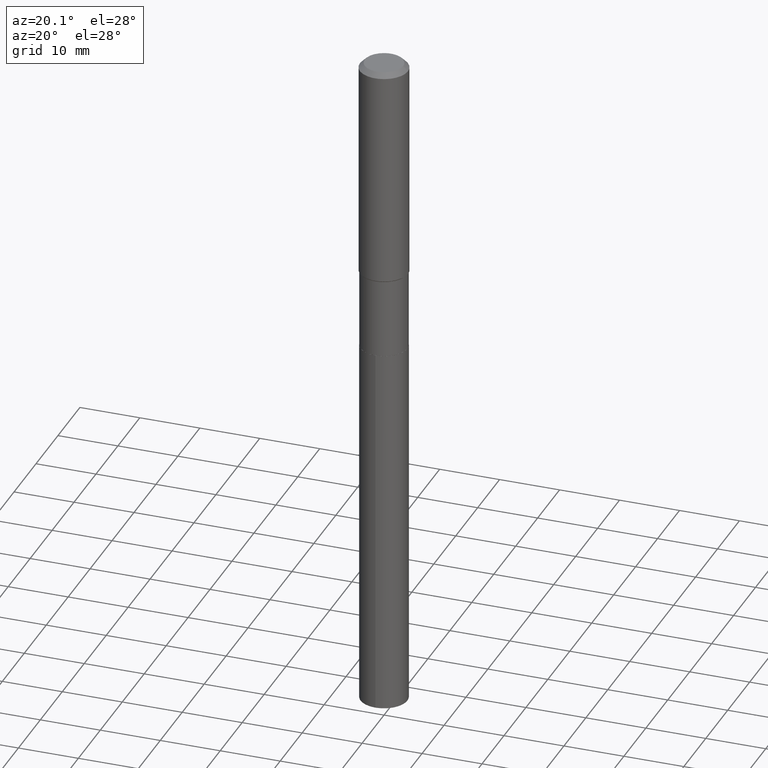
[diagram: clean part render]
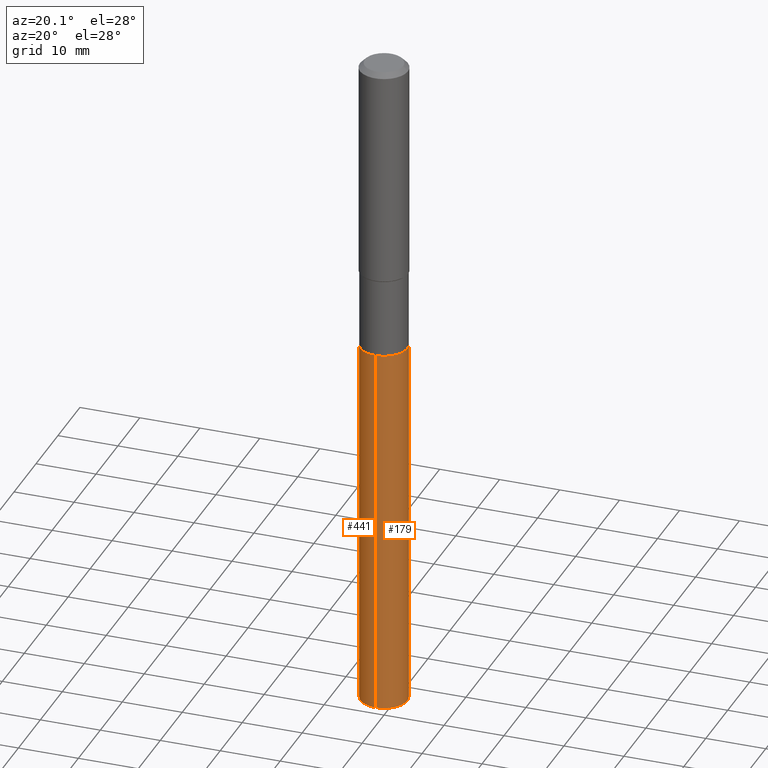
[diagram: same view with one multi-face feature highlighted, each face labeled with its STEP entity id]
A machine part, auxiliary view. The highlighted faces form ONE feature: a constant-radius fillet chain: 2 tangent blend faces with common blend radius 3.9002 mm. The faces share edges in the B-rep.
Their STEP definitions:
[1] entity #441 (Cylinder):
#3 = DIRECTION ( 'NONE',  ( -2.445397477310179660E-29, 3.491583485851871163E-15, 1.000000000000000000 ) ) ;
#9 = LINE ( 'NONE', #450, #284 ) ;
#21 = ORIENTED_EDGE ( 'NONE', *, *, #459, .T. ) ;
#56 = EDGE_LOOP ( 'NONE', ( #334, #268, #21, #187 ) ) ;
#68 = CIRCLE ( 'NONE', #116, 0.1535499999999999921 ) ;
#77 = DIRECTION ( 'NONE',  ( -2.445397477310179380E-29, 3.491583485851871163E-15, 1.000000000000000000 ) ) ;
#90 = DIRECTION ( 'NONE',  ( -6.982962677686266711E-15, -1.000000000000000000, 3.558252026915354491E-15 ) ) ;
#108 = CARTESIAN_POINT ( 'NONE',  ( 1.091038370759742445E-15, 0.1535499999999931364, -1.968500000000000583 ) ) ;
#111 = DIRECTION ( 'NONE',  ( -2.445397477310179660E-29, 3.491583485851871163E-15, 1.000000000000000000 ) ) ;
#116 = AXIS2_PLACEMENT_3D ( 'NONE', #341, #111, #300 ) ;
#119 = FACE_OUTER_BOUND ( 'NONE', #56, .T. ) ;
#144 = CARTESIAN_POINT ( 'NONE',  ( -1.072233919158677828E-15, -0.1535500000000068754, -1.968499999999999472 ) ) ;
#153 = EDGE_CURVE ( 'NONE', #296, #174, #320, .T. ) ;
#174 = VERTEX_POINT ( 'NONE', #144 ) ;
#186 = CARTESIAN_POINT ( 'NONE',  ( 4.813905344975440714E-29, -6.872981015512730918E-15, -1.968499999999999694 ) ) ;
#187 = ORIENTED_EDGE ( 'NONE', *, *, #153, .F. ) ;
#231 = CARTESIAN_POINT ( 'NONE',  ( -1.072233919158677828E-15, -0.1535500000000068754, -1.968499999999999250 ) ) ;
#260 = AXIS2_PLACEMENT_3D ( 'NONE', #186, #3, #417 ) ;
#267 = CYLINDRICAL_SURFACE ( 'NONE', #260, 0.1535499999999999921 ) ;
#268 = ORIENTED_EDGE ( 'NONE', *, *, #366, .T. ) ;
#284 = VECTOR ( 'NONE', #381, 39.37007874015748143 ) ;
#296 = VERTEX_POINT ( 'NONE', #108 ) ;
#300 = DIRECTION ( 'NONE',  ( -6.982962677686266711E-15, -1.000000000000000000, 3.558252026915354491E-15 ) ) ;
#319 = CARTESIAN_POINT ( 'NONE',  ( 4.813905344975441835E-29, -6.872981015512731707E-15, -1.968500000000000139 ) ) ;
#320 = CIRCLE ( 'NONE', #384, 0.1535499999999999921 ) ;
#332 = VERTEX_POINT ( 'NONE', #343 ) ;
#334 = ORIENTED_EDGE ( 'NONE', *, *, #350, .F. ) ;
#341 = CARTESIAN_POINT ( 'NONE',  ( 1.082766361577476650E-28, -1.545953565992347058E-14, -4.427715046469325344 ) ) ;
#343 = CARTESIAN_POINT ( 'NONE',  ( 1.091038370759742050E-15, 0.1535499999999845877, -4.427715046469326232 ) ) ;
#350 = EDGE_CURVE ( 'NONE', #332, #296, #9, .T. ) ;
#366 = EDGE_CURVE ( 'NONE', #332, #373, #68, .T. ) ;
#373 = VERTEX_POINT ( 'NONE', #385 ) ;
#377 = LINE ( 'NONE', #231, #470 ) ;
#381 = DIRECTION ( 'NONE',  ( -2.445397477310179380E-29, 3.491583485851871163E-15, 1.000000000000000000 ) ) ;
#384 = AXIS2_PLACEMENT_3D ( 'NONE', #319, #467, #90 ) ;
#385 = CARTESIAN_POINT ( 'NONE',  ( -1.072233919158617875E-15, -0.1535500000000154519, -4.427715046469325344 ) ) ;
#417 = DIRECTION ( 'NONE',  ( -6.982962677686266711E-15, -1.000000000000000000, 3.558252026915354491E-15 ) ) ;
#441 = ADVANCED_FACE ( 'NONE', ( #119 ), #267, .T. ) ;
#450 = CARTESIAN_POINT ( 'NONE',  ( 1.091038370759681899E-15, 0.1535499999999931087, -1.968500000000000361 ) ) ;
#459 = EDGE_CURVE ( 'NONE', #373, #174, #377, .T. ) ;
#467 = DIRECTION ( 'NONE',  ( -2.445397477310179660E-29, 3.491583485851871163E-15, 1.000000000000000000 ) ) ;
#470 = VECTOR ( 'NONE', #77, 39.37007874015748143 ) ;
[2] entity #179 (Cylinder):
#9 = LINE ( 'NONE', #450, #284 ) ;
#67 = ORIENTED_EDGE ( 'NONE', *, *, #350, .T. ) ;
#77 = DIRECTION ( 'NONE',  ( -2.445397477310179380E-29, 3.491583485851871163E-15, 1.000000000000000000 ) ) ;
#78 = ORIENTED_EDGE ( 'NONE', *, *, #475, .T. ) ;
#103 = ORIENTED_EDGE ( 'NONE', *, *, #288, .F. ) ;
#107 = AXIS2_PLACEMENT_3D ( 'NONE', #274, #232, #229 ) ;
#108 = CARTESIAN_POINT ( 'NONE',  ( 1.091038370759742445E-15, 0.1535499999999931364, -1.968500000000000583 ) ) ;
#114 = EDGE_LOOP ( 'NONE', ( #78, #67, #103, #139 ) ) ;
#134 = DIRECTION ( 'NONE',  ( -6.982962677686266711E-15, -1.000000000000000000, 3.558252026915354491E-15 ) ) ;
#135 = CARTESIAN_POINT ( 'NONE',  ( 4.813905344975440714E-29, -6.872981015512730918E-15, -1.968499999999999694 ) ) ;
#137 = AXIS2_PLACEMENT_3D ( 'NONE', #221, #375, #372 ) ;
#139 = ORIENTED_EDGE ( 'NONE', *, *, #459, .F. ) ;
#144 = CARTESIAN_POINT ( 'NONE',  ( -1.072233919158677828E-15, -0.1535500000000068754, -1.968499999999999472 ) ) ;
#174 = VERTEX_POINT ( 'NONE', #144 ) ;
#179 = ADVANCED_FACE ( 'NONE', ( #474 ), #256, .T. ) ;
#221 = CARTESIAN_POINT ( 'NONE',  ( 4.813905344975441835E-29, -6.872981015512731707E-15, -1.968500000000000139 ) ) ;
#229 = DIRECTION ( 'NONE',  ( -6.982962677686266711E-15, -1.000000000000000000, 3.558252026915354491E-15 ) ) ;
#231 = CARTESIAN_POINT ( 'NONE',  ( -1.072233919158677828E-15, -0.1535500000000068754, -1.968499999999999250 ) ) ;
#232 = DIRECTION ( 'NONE',  ( -2.445397477310179660E-29, 3.491583485851871163E-15, 1.000000000000000000 ) ) ;
#256 = CYLINDRICAL_SURFACE ( 'NONE', #455, 0.1535499999999999921 ) ;
#274 = CARTESIAN_POINT ( 'NONE',  ( 1.082766361577476650E-28, -1.545953565992347058E-14, -4.427715046469325344 ) ) ;
#284 = VECTOR ( 'NONE', #381, 39.37007874015748143 ) ;
#288 = EDGE_CURVE ( 'NONE', #174, #296, #298, .T. ) ;
#296 = VERTEX_POINT ( 'NONE', #108 ) ;
#298 = CIRCLE ( 'NONE', #137, 0.1535499999999999921 ) ;
#332 = VERTEX_POINT ( 'NONE', #343 ) ;
#343 = CARTESIAN_POINT ( 'NONE',  ( 1.091038370759742050E-15, 0.1535499999999845877, -4.427715046469326232 ) ) ;
#350 = EDGE_CURVE ( 'NONE', #332, #296, #9, .T. ) ;
#372 = DIRECTION ( 'NONE',  ( -6.982962677686266711E-15, -1.000000000000000000, 3.558252026915354491E-15 ) ) ;
#373 = VERTEX_POINT ( 'NONE', #385 ) ;
#375 = DIRECTION ( 'NONE',  ( -2.445397477310179660E-29, 3.491583485851871163E-15, 1.000000000000000000 ) ) ;
#377 = LINE ( 'NONE', #231, #470 ) ;
#381 = DIRECTION ( 'NONE',  ( -2.445397477310179380E-29, 3.491583485851871163E-15, 1.000000000000000000 ) ) ;
#385 = CARTESIAN_POINT ( 'NONE',  ( -1.072233919158617875E-15, -0.1535500000000154519, -4.427715046469325344 ) ) ;
#390 = CIRCLE ( 'NONE', #107, 0.1535499999999999921 ) ;
#450 = CARTESIAN_POINT ( 'NONE',  ( 1.091038370759681899E-15, 0.1535499999999931087, -1.968500000000000361 ) ) ;
#455 = AXIS2_PLACEMENT_3D ( 'NONE', #135, #476, #134 ) ;
#459 = EDGE_CURVE ( 'NONE', #373, #174, #377, .T. ) ;
#470 = VECTOR ( 'NONE', #77, 39.37007874015748143 ) ;
#474 = FACE_OUTER_BOUND ( 'NONE', #114, .T. ) ;
#475 = EDGE_CURVE ( 'NONE', #373, #332, #390, .T. ) ;
#476 = DIRECTION ( 'NONE',  ( -2.445397477310179660E-29, 3.491583485851871163E-15, 1.000000000000000000 ) ) ;